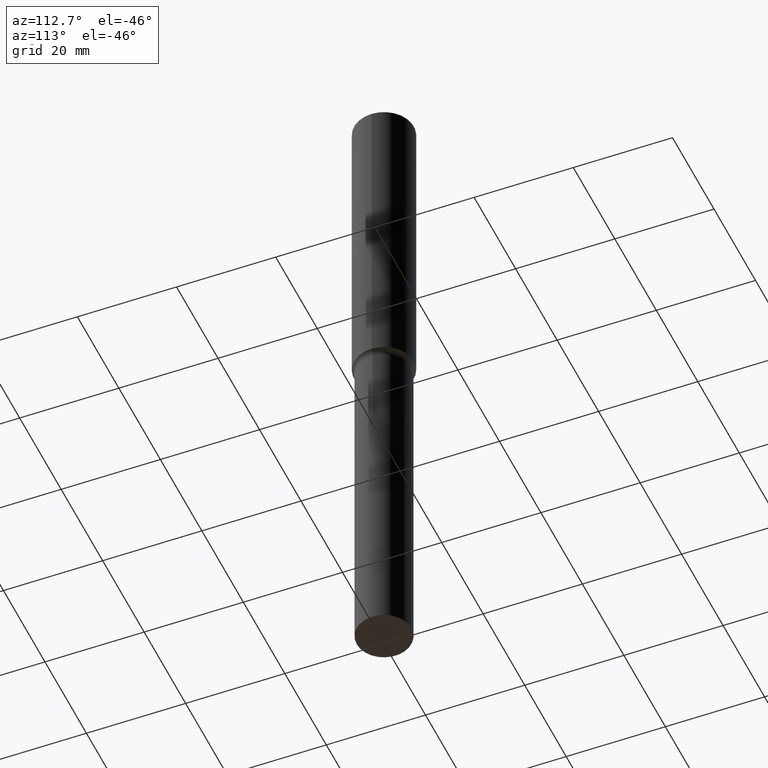
[diagram: clean part render]
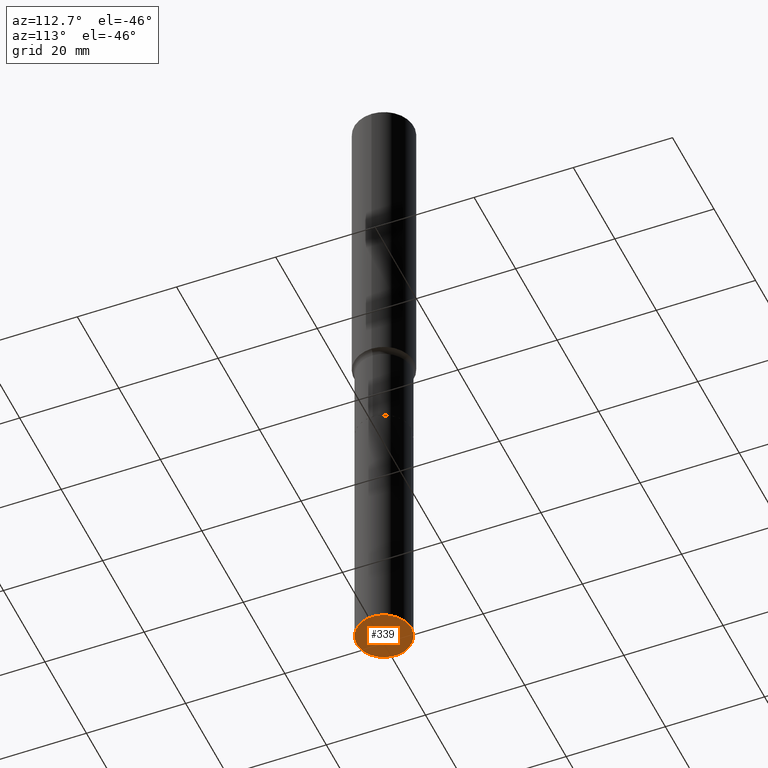
[diagram: same view with one face highlighted and labeled with its STEP entity id]
A machine part, auxiliary view. The second image highlights one B-rep face of the part: STEP entity #339.
In plain terms, the highlighted planar face has unit normal (-0, 0, 1).
Its self-contained STEP definition (entity closure, byte-faithful):
#8 = CARTESIAN_POINT ( 'NONE',  ( 1.299823801295359673E-28, -1.855640517026451512E-14, -5.315000000000001279 ) ) ;
#27 = DIRECTION ( 'NONE',  ( -2.445740082576205296E-29, 3.491092855611041770E-15, 1.000000000000000000 ) ) ;
#38 = DIRECTION ( 'NONE',  ( -6.982962677686265922E-15, -1.000000000000000000, 3.491092855611041770E-15 ) ) ;
#39 = PLANE ( 'NONE',  #133 ) ;
#45 = ORIENTED_EDGE ( 'NONE', *, *, #184, .F. ) ;
#57 = CIRCLE ( 'NONE', #69, 0.2165500000000000203 ) ;
#58 = CARTESIAN_POINT ( 'NONE',  ( 1.299823801295359673E-28, -1.855640517026451512E-14, -5.315000000000001279 ) ) ;
#59 = DIRECTION ( 'NONE',  ( -6.982962677686265133E-15, -1.000000000000000000, 5.046128826902356247E-15 ) ) ;
#69 = AXIS2_PLACEMENT_3D ( 'NONE', #8, #160, #264 ) ;
#124 = AXIS2_PLACEMENT_3D ( 'NONE', #58, #27, #59 ) ;
#133 = AXIS2_PLACEMENT_3D ( 'NONE', #245, #289, #38 ) ;
#159 = ORIENTED_EDGE ( 'NONE', *, *, #402, .F. ) ;
#160 = DIRECTION ( 'NONE',  ( -2.445740082576205296E-29, 3.491092855611041770E-15, 1.000000000000000000 ) ) ;
#184 = EDGE_CURVE ( 'NONE', #294, #290, #277, .T. ) ;
#214 = CARTESIAN_POINT ( 'NONE',  ( -1.512160567852830858E-15, -0.2165500000000185610, -5.315000000000000391 ) ) ;
#245 = CARTESIAN_POINT ( 'NONE',  ( -5.730761199503226596E-29, -4.537739803093735735E-14, -5.315000000000001279 ) ) ;
#253 = EDGE_LOOP ( 'NONE', ( #159, #45 ) ) ;
#264 = DIRECTION ( 'NONE',  ( -6.982962677686265133E-15, -1.000000000000000000, 5.046128826902356247E-15 ) ) ;
#277 = CIRCLE ( 'NONE', #124, 0.2165500000000000203 ) ;
#289 = DIRECTION ( 'NONE',  ( -2.445740082576205015E-29, 3.491092855611041770E-15, 1.000000000000000000 ) ) ;
#290 = VERTEX_POINT ( 'NONE', #214 ) ;
#294 = VERTEX_POINT ( 'NONE', #399 ) ;
#328 = FACE_OUTER_BOUND ( 'NONE', #253, .T. ) ;
#339 = ADVANCED_FACE ( 'NONE', ( #328 ), #39, .F. ) ;
#399 = CARTESIAN_POINT ( 'NONE',  ( 1.538680294288601029E-15, 0.2165499999999814795, -5.315000000000003055 ) ) ;
#402 = EDGE_CURVE ( 'NONE', #290, #294, #57, .T. ) ;